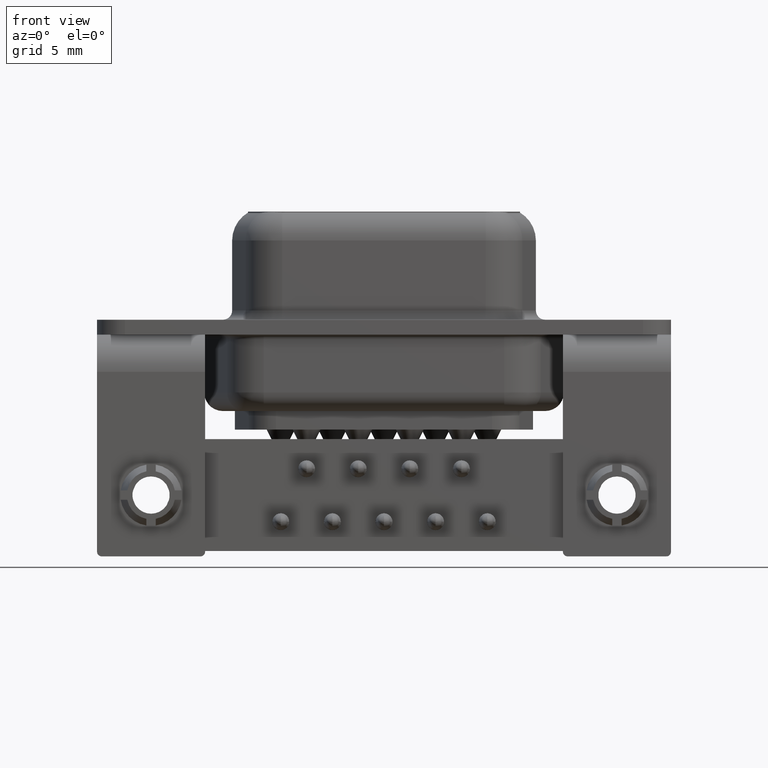
[diagram: clean part render]
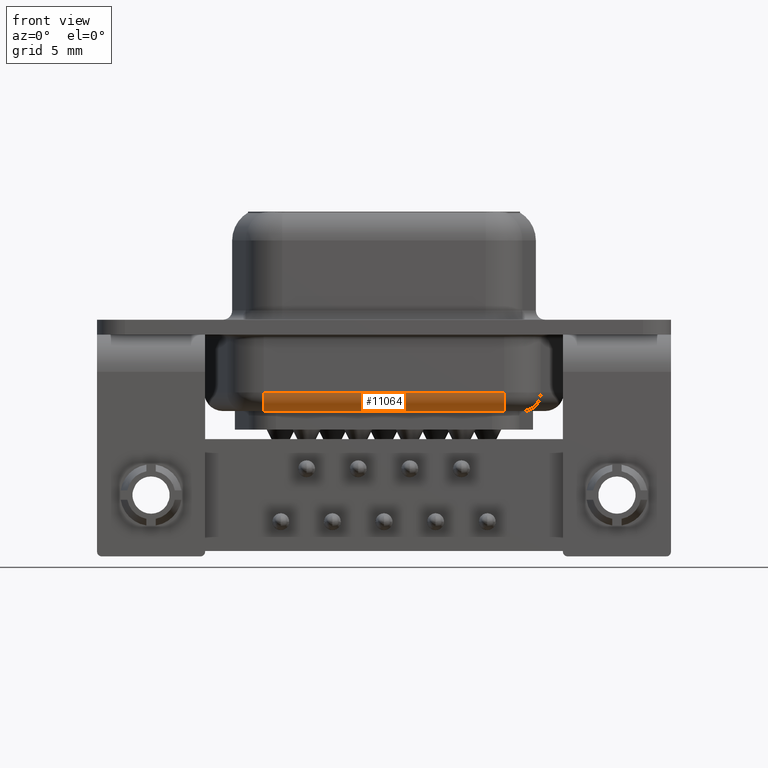
[diagram: same view with one face highlighted and labeled with its STEP entity id]
A machine part, front view. The second image highlights one B-rep face of the part: STEP entity #11064.
In plain terms, the highlighted cylindrical surface (edge-blend (fillet) strip) has radius 1 mm, axis along (-1, 0, 0).
Its self-contained STEP definition (entity closure, byte-faithful):
#177 = ORIENTED_EDGE ( 'NONE', *, *, #9039, .F. ) ;
#794 = DIRECTION ( 'NONE',  ( -1.000000000000000000, 0.0000000000000000000, 0.0000000000000000000 ) ) ;
#2015 = CARTESIAN_POINT ( 'NONE',  ( 6.049023468817512800, -4.400000000000000400, -4.500000000000000000 ) ) ;
#2216 = VECTOR ( 'NONE', #794, 1000.000000000000000 ) ;
#2362 = VERTEX_POINT ( 'NONE', #11775 ) ;
#2486 = DIRECTION ( 'NONE',  ( -1.000000000000000000, -0.0000000000000000000, -0.0000000000000000000 ) ) ;
#2844 = CARTESIAN_POINT ( 'NONE',  ( 6.049023468817512800, -4.400000000000000400, -3.499999999999999600 ) ) ;
#4236 = VERTEX_POINT ( 'NONE', #6015 ) ;
#4336 = DIRECTION ( 'NONE',  ( 0.0000000000000000000, 0.0000000000000000000, 1.000000000000000000 ) ) ;
#5323 = FACE_OUTER_BOUND ( 'NONE', #17612, .T. ) ;
#5746 = CIRCLE ( 'NONE', #15577, 1.000000000000000000 ) ;
#6015 = CARTESIAN_POINT ( 'NONE',  ( 18.95097653118248700, -4.400000000000000400, -4.500000000000000000 ) ) ;
#6357 = ORIENTED_EDGE ( 'NONE', *, *, #18013, .T. ) ;
#6859 = LINE ( 'NONE', #16537, #14207 ) ;
#7903 = ORIENTED_EDGE ( 'NONE', *, *, #12225, .F. ) ;
#8183 = AXIS2_PLACEMENT_3D ( 'NONE', #18224, #9392, #13720 ) ;
#8593 = CARTESIAN_POINT ( 'NONE',  ( 18.95097653118248700, -5.400000000000000400, -3.499999999999999600 ) ) ;
#9039 = EDGE_CURVE ( 'NONE', #2362, #14197, #6859, .T. ) ;
#9208 = DIRECTION ( 'NONE',  ( 1.000000000000000000, -0.0000000000000000000, -0.0000000000000000000 ) ) ;
#9392 = DIRECTION ( 'NONE',  ( -1.000000000000000000, 0.0000000000000000000, 0.0000000000000000000 ) ) ;
#11064 = ADVANCED_FACE ( 'NONE', ( #5323 ), #12686, .T. ) ;
#11329 = CARTESIAN_POINT ( 'NONE',  ( 18.95097653118248700, -4.400000000000000400, -3.499999999999999600 ) ) ;
#11775 = CARTESIAN_POINT ( 'NONE',  ( 6.049023468817512800, -5.400000000000000400, -3.499999999999999600 ) ) ;
#12225 = EDGE_CURVE ( 'NONE', #18338, #2362, #5746, .T. ) ;
#12686 = CYLINDRICAL_SURFACE ( 'NONE', #8183, 1.000000000000000000 ) ;
#12782 = DIRECTION ( 'NONE',  ( 0.0000000000000000000, 0.0000000000000000000, 1.000000000000000000 ) ) ;
#13141 = DIRECTION ( 'NONE',  ( -1.000000000000000000, -0.0000000000000000000, -0.0000000000000000000 ) ) ;
#13720 = DIRECTION ( 'NONE',  ( 0.0000000000000000000, 0.0000000000000000000, 1.000000000000000000 ) ) ;
#13999 = ORIENTED_EDGE ( 'NONE', *, *, #16653, .F. ) ;
#14197 = VERTEX_POINT ( 'NONE', #8593 ) ;
#14207 = VECTOR ( 'NONE', #9208, 1000.000000000000000 ) ;
#14423 = LINE ( 'NONE', #15477, #2216 ) ;
#15477 = CARTESIAN_POINT ( 'NONE',  ( 6.049023468817512800, -4.400000000000000400, -4.500000000000000000 ) ) ;
#15577 = AXIS2_PLACEMENT_3D ( 'NONE', #2844, #13141, #4336 ) ;
#16537 = CARTESIAN_POINT ( 'NONE',  ( 6.049023468817512800, -5.400000000000000400, -3.499999999999999600 ) ) ;
#16653 = EDGE_CURVE ( 'NONE', #4236, #18338, #14423, .T. ) ;
#17612 = EDGE_LOOP ( 'NONE', ( #6357, #177, #7903, #13999 ) ) ;
#17870 = AXIS2_PLACEMENT_3D ( 'NONE', #11329, #2486, #12782 ) ;
#18013 = EDGE_CURVE ( 'NONE', #4236, #14197, #18078, .T. ) ;
#18078 = CIRCLE ( 'NONE', #17870, 1.000000000000000000 ) ;
#18224 = CARTESIAN_POINT ( 'NONE',  ( 6.049023468817512800, -4.400000000000000400, -3.499999999999999600 ) ) ;
#18338 = VERTEX_POINT ( 'NONE', #2015 ) ;